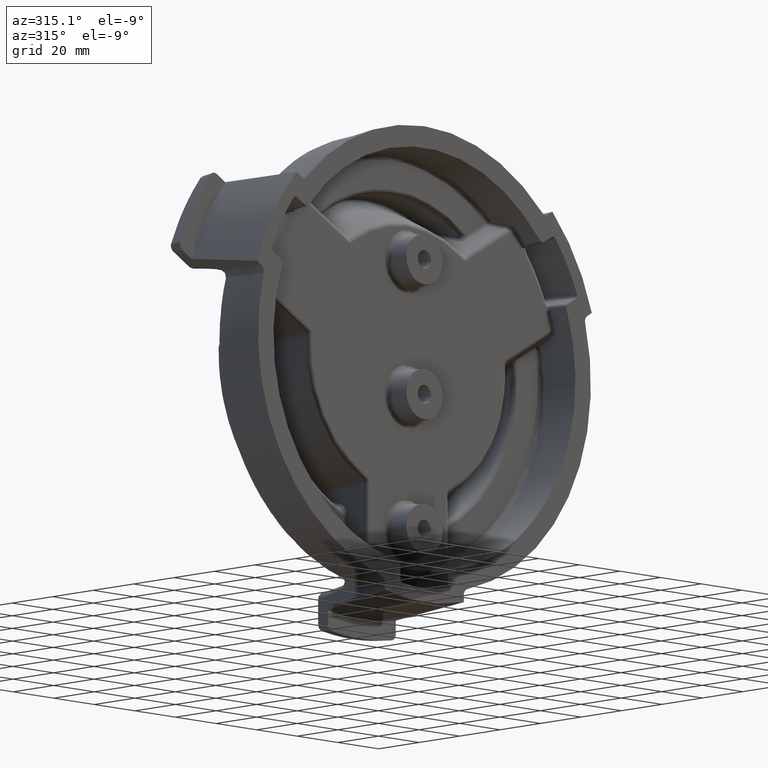
[diagram: clean part render]
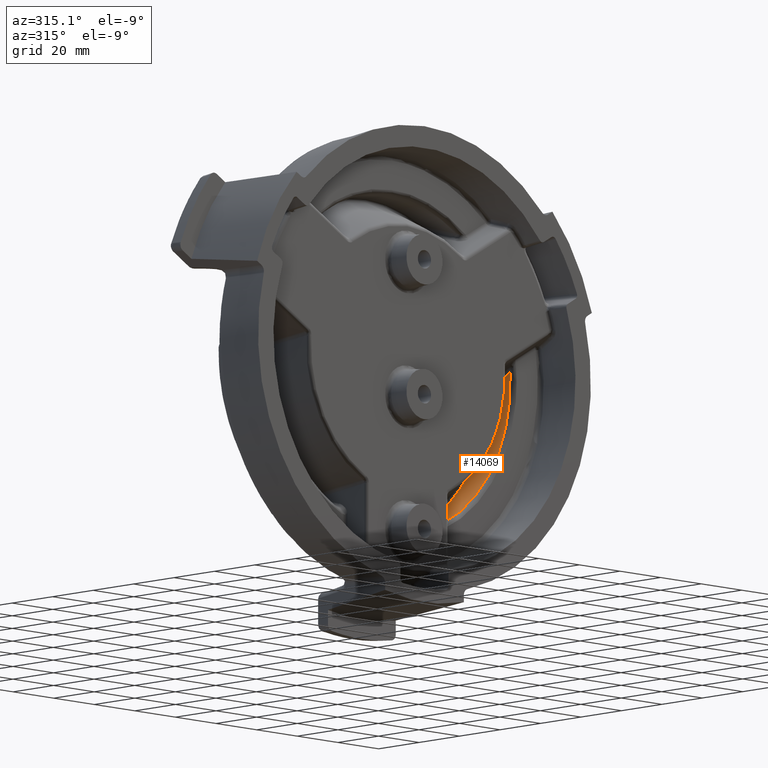
[diagram: same view with one face highlighted and labeled with its STEP entity id]
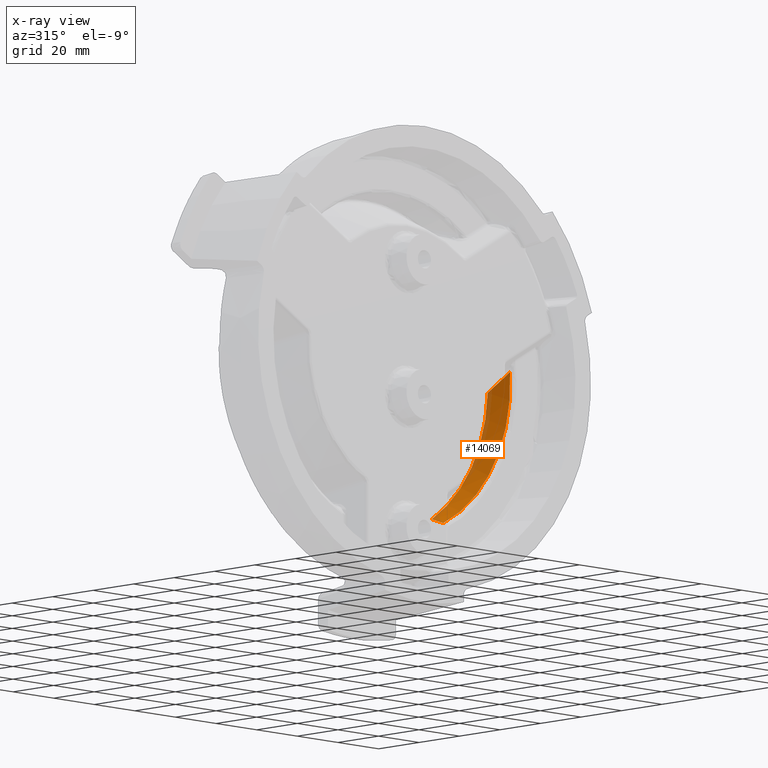
[diagram: x-ray of the same camera — body ghosted, the highlighted face saturated]
A machine part, auxiliary view. The second image highlights one B-rep face of the part: STEP entity #14069.
The next image is the same camera in x-ray: the body ghosted, the highlighted face saturated — about 14% of this face is hidden behind the body in this view.
In plain terms, the highlighted conical surface has half-angle 1 deg.
Its self-contained STEP definition (entity closure, byte-faithful):
#454 = CONICAL_SURFACE ( 'NONE', #30231, 2.339543416999999800, 0.01745329101376891900 ) ;
#515 = FACE_OUTER_BOUND ( 'NONE', #10205, .T. ) ;
#2235 = CARTESIAN_POINT ( 'NONE',  ( 2.342632887739301200, 0.5614092245974762200, 0.1437938343859030700 ) ) ;
#2427 = CARTESIAN_POINT ( 'NONE',  ( 2.337535349175062100, 0.9909950034994653400, -0.09691176050782847300 ) ) ;
#2496 = VERTEX_POINT ( 'NONE', #2427 ) ;
#5872 = VERTEX_POINT ( 'NONE', #2235 ) ;
#7994 = CARTESIAN_POINT ( 'NONE',  ( 1.046787329924177700, 0.5614092240786980900, -2.100676509472139100 ) ) ;
#10205 = EDGE_LOOP ( 'NONE', ( #35014, #35015, #35016, #35017 ) ) ;
#14069 = ADVANCED_FACE ( 'NONE', ( #515 ), #454, .F. ) ;
#22322 = CARTESIAN_POINT ( 'NONE',  ( 0.0000000000000000000, 0.5614092250000007900, 0.0000000000000000000 ) ) ;
#22323 = DIRECTION ( 'NONE',  ( -0.0000000000000000000, 1.000000000000000000, -0.0000000000000000000 ) ) ;
#22324 = DIRECTION ( 'NONE',  ( 8.881784197001252300E-016, 0.0000000000000000000, -1.000000000000000000 ) ) ;
#22343 = CARTESIAN_POINT ( 'NONE',  ( 1.252695719250043200, 0.9909950052452559700, -1.975909115548712100 ) ) ;
#22362 = CARTESIAN_POINT ( 'NONE',  ( 2.342632887739301200, 0.5614092245974762200, 0.1437938343859030700 ) ) ;
#22363 = CARTESIAN_POINT ( 'NONE',  ( 1.187923982869318200, 0.8558738814624440300, -2.019765992655560400 ) ) ;
#22364 = CARTESIAN_POINT ( 'NONE',  ( 1.119287150899597200, 0.7126786215533217300, -2.061599068065829200 ) ) ;
#22365 = CARTESIAN_POINT ( 'NONE',  ( 1.046787329924177700, 0.5614092240786980900, -2.100676509472139100 ) ) ;
#22398 = CARTESIAN_POINT ( 'NONE',  ( 2.345040741391738700, 0.7126786529719250100, 0.06146840900972182900 ) ) ;
#22399 = CARTESIAN_POINT ( 'NONE',  ( 2.343130649472883400, 0.8558739126334985500, -0.01888936878560508500 ) ) ;
#22400 = CARTESIAN_POINT ( 'NONE',  ( 2.337535349175062100, 0.9909950034994653400, -0.09691176050782847300 ) ) ;
#24912 = EDGE_CURVE ( 'NONE', #5872, #42149, #29370, .T. ) ;
#24917 = EDGE_CURVE ( 'NONE', #32566, #42149, #29803, .T. ) ;
#24919 = EDGE_CURVE ( 'NONE', #5872, #2496, #29805, .T. ) ;
#29370 = CIRCLE ( 'NONE', #42114, 2.347041864000000400 ) ;
#29803 = B_SPLINE_CURVE_WITH_KNOTS ( 'NONE', 3,
 ( #22343, #22363, #22364, #22365 ),
 .UNSPECIFIED., .F., .F.,
 ( 4, 4 ),
 ( 0.0000000000000000000, 1.000000000000000000 ),
 .UNSPECIFIED. ) ;
#29805 = B_SPLINE_CURVE_WITH_KNOTS ( 'NONE', 3,
 ( #22362, #22398, #22399, #22400 ),
 .UNSPECIFIED., .F., .F.,
 ( 4, 4 ),
 ( 0.0000000000000000000, 1.000000000000000000 ),
 .UNSPECIFIED. ) ;
#30157 = EDGE_CURVE ( 'NONE', #2496, #32566, #35602, .T. ) ;
#30231 = AXIS2_PLACEMENT_3D ( 'NONE', #34009, #33959, #33962 ) ;
#32566 = VERTEX_POINT ( 'NONE', #40624 ) ;
#33959 = DIRECTION ( 'NONE',  ( 0.0000000000000000000, -1.000000000000000000, 0.0000000000000000000 ) ) ;
#33962 = DIRECTION ( 'NONE',  ( 0.0000000000000000000, 0.0000000000000000000, -1.000000000000000000 ) ) ;
#34009 = CARTESIAN_POINT ( 'NONE',  ( 0.0000000000000000000, 0.9909950030000002100, 0.0000000000000000000 ) ) ;
#35014 = ORIENTED_EDGE ( 'NONE', *, *, #30157, .T. ) ;
#35015 = ORIENTED_EDGE ( 'NONE', *, *, #24917, .T. ) ;
#35016 = ORIENTED_EDGE ( 'NONE', *, *, #24912, .F. ) ;
#35017 = ORIENTED_EDGE ( 'NONE', *, *, #24919, .T. ) ;
#35602 = CIRCLE ( 'NONE', #42489, 2.339543416999999800 ) ;
#40315 = CARTESIAN_POINT ( 'NONE',  ( 0.0000000000000000000, 0.9909950030000016500, 0.0000000000000000000 ) ) ;
#40331 = DIRECTION ( 'NONE',  ( -0.0000000000000000000, 1.000000000000000000, -0.0000000000000000000 ) ) ;
#40333 = DIRECTION ( 'NONE',  ( 3.552713678800500900E-015, -5.838421235984832400E-016, -1.000000000000000000 ) ) ;
#40624 = CARTESIAN_POINT ( 'NONE',  ( 1.252695719250043200, 0.9909950052452559700, -1.975909115548712100 ) ) ;
#42114 = AXIS2_PLACEMENT_3D ( 'NONE', #22322, #22323, #22324 ) ;
#42149 = VERTEX_POINT ( 'NONE', #7994 ) ;
#42489 = AXIS2_PLACEMENT_3D ( 'NONE', #40315, #40331, #40333 ) ;